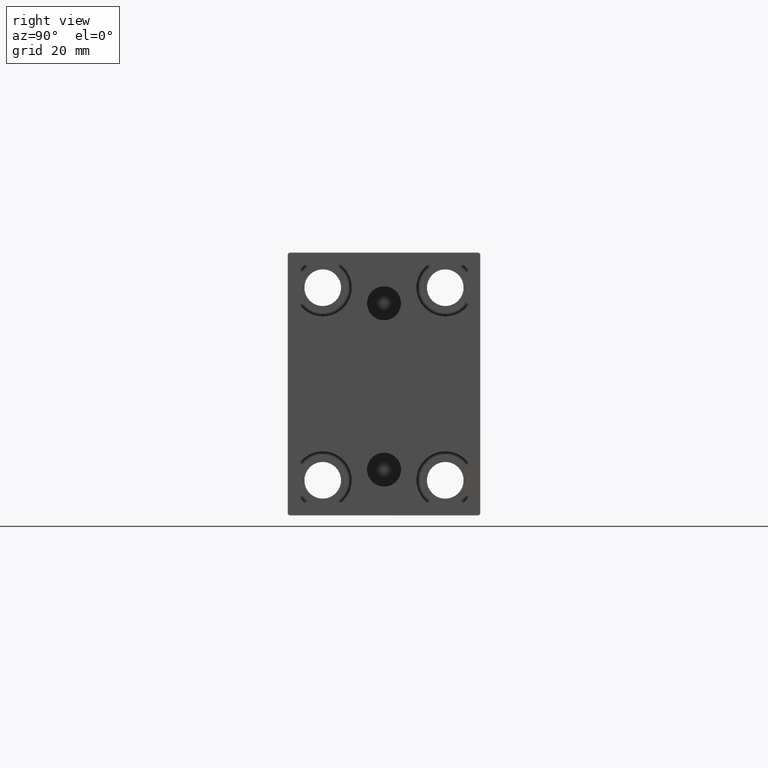
[diagram: clean part render]
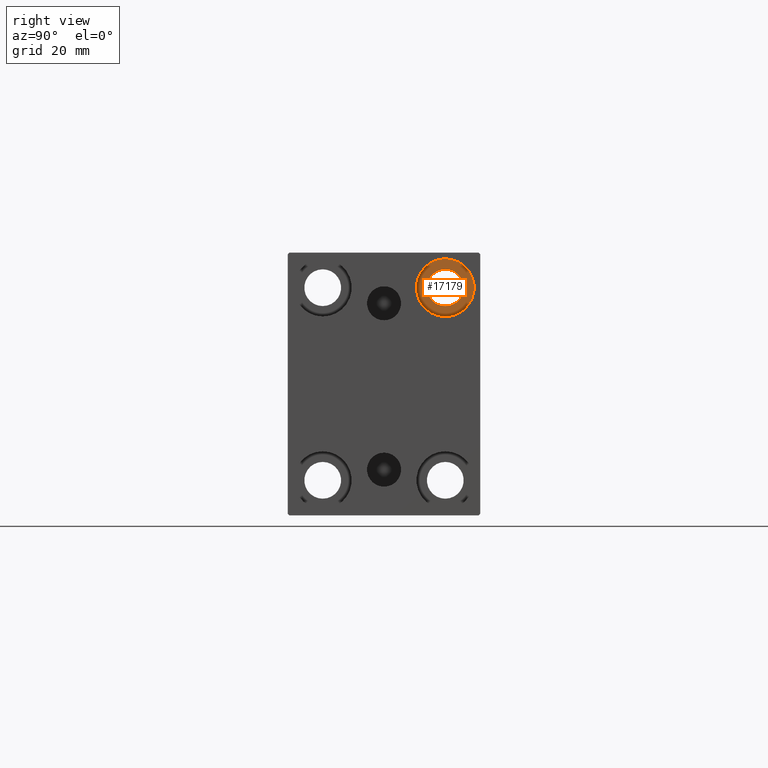
[diagram: same view with one face highlighted and labeled with its STEP entity id]
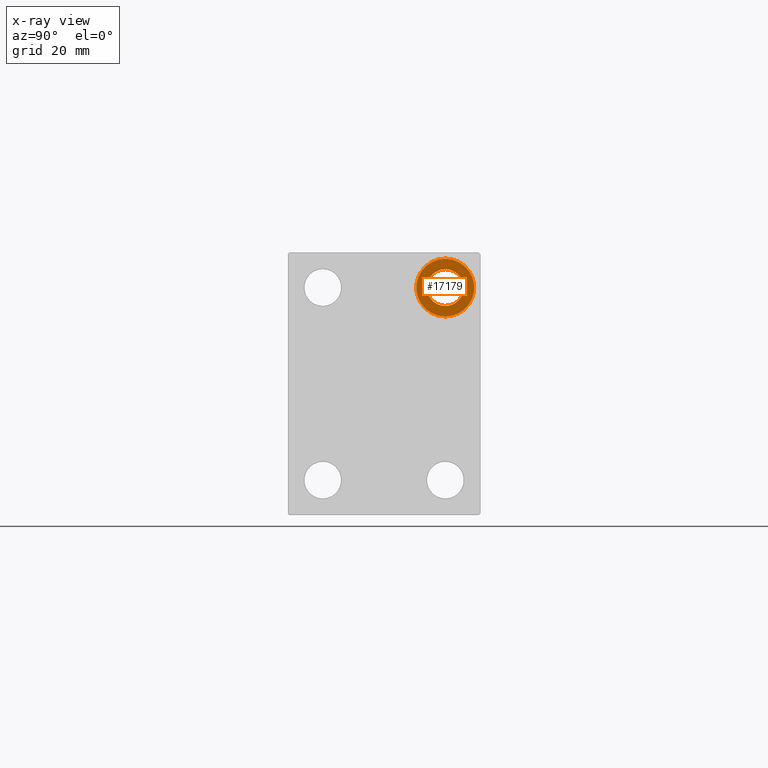
[diagram: x-ray of the same camera — body ghosted, the highlighted face saturated]
A machine part, right view. The second image highlights one B-rep face of the part: STEP entity #17179.
The next image is the same camera in x-ray: the body ghosted, the highlighted face saturated — about 0% of this face is hidden behind the body in this view.
In plain terms, the highlighted planar face has unit normal (1, 0, 0).
Its self-contained STEP definition (entity closure, byte-faithful):
#308 = EDGE_CURVE ( 'NONE', #33921, #30288, #22408, .T. ) ;
#694 = AXIS2_PLACEMENT_3D ( 'NONE', #14403, #24097, #37536 ) ;
#1954 = CARTESIAN_POINT ( 'NONE',  ( 163.9999999999999716, 17.50000000000000355, 32.74999999999999289 ) ) ;
#2197 = VERTEX_POINT ( 'NONE', #1954 ) ;
#2777 = AXIS2_PLACEMENT_3D ( 'NONE', #36370, #3086, #32855 ) ;
#3086 = DIRECTION ( 'NONE',  ( -1.000000000000000000, -0.000000000000000000, -0.000000000000000000 ) ) ;
#3167 = EDGE_CURVE ( 'NONE', #2197, #40138, #28833, .T. ) ;
#4705 = FACE_BOUND ( 'NONE', #26869, .T. ) ;
#4828 = CARTESIAN_POINT ( 'NONE',  ( 163.9999999999999716, 17.50000000000000355, 19.25000000000000000 ) ) ;
#5571 = FACE_OUTER_BOUND ( 'NONE', #35795, .T. ) ;
#8020 = DIRECTION ( 'NONE',  ( 0.000000000000000000, 0.000000000000000000, -1.000000000000000000 ) ) ;
#11539 = PLANE ( 'NONE',  #38312 ) ;
#14403 = CARTESIAN_POINT ( 'NONE',  ( 163.9999999999999716, 17.50000000000000355, 27.49999999999999645 ) ) ;
#17179 = ADVANCED_FACE ( 'NONE', ( #5571, #4705 ), #11539, .T. ) ;
#18240 = ORIENTED_EDGE ( 'NONE', *, *, #24879, .F. ) ;
#18797 = DIRECTION ( 'NONE',  ( 1.000000000000000000, 0.000000000000000000, -0.000000000000000000 ) ) ;
#19019 = DIRECTION ( 'NONE',  ( 0.000000000000000000, 0.000000000000000000, 1.000000000000000000 ) ) ;
#21006 = CARTESIAN_POINT ( 'NONE',  ( 163.9999999999999716, 17.50000000000000355, 27.49999999999999645 ) ) ;
#22408 = CIRCLE ( 'NONE', #2777, 8.249999999999992895 ) ;
#24097 = DIRECTION ( 'NONE',  ( -1.000000000000000000, -0.000000000000000000, -0.000000000000000000 ) ) ;
#24532 = DIRECTION ( 'NONE',  ( 0.000000000000000000, 0.000000000000000000, 1.000000000000000000 ) ) ;
#24760 = ORIENTED_EDGE ( 'NONE', *, *, #308, .F. ) ;
#24879 = EDGE_CURVE ( 'NONE', #30288, #33921, #27054, .T. ) ;
#25413 = CARTESIAN_POINT ( 'NONE',  ( 163.9999999999999716, 0.000000000000000000, 0.000000000000000000 ) ) ;
#26869 = EDGE_LOOP ( 'NONE', ( #31908, #34029 ) ) ;
#27054 = CIRCLE ( 'NONE', #41116, 8.249999999999992895 ) ;
#28076 = CARTESIAN_POINT ( 'NONE',  ( 163.9999999999999716, 17.50000000000000355, 35.74999999999999289 ) ) ;
#28494 = DIRECTION ( 'NONE',  ( -1.000000000000000000, -0.000000000000000000, -0.000000000000000000 ) ) ;
#28833 = CIRCLE ( 'NONE', #694, 5.249999999999997335 ) ;
#30077 = AXIS2_PLACEMENT_3D ( 'NONE', #38193, #28494, #8020 ) ;
#30288 = VERTEX_POINT ( 'NONE', #4828 ) ;
#31500 = CIRCLE ( 'NONE', #30077, 5.249999999999997335 ) ;
#31908 = ORIENTED_EDGE ( 'NONE', *, *, #3167, .T. ) ;
#32855 = DIRECTION ( 'NONE',  ( 0.000000000000000000, 0.000000000000000000, 1.000000000000000000 ) ) ;
#33921 = VERTEX_POINT ( 'NONE', #28076 ) ;
#34029 = ORIENTED_EDGE ( 'NONE', *, *, #34082, .T. ) ;
#34082 = EDGE_CURVE ( 'NONE', #40138, #2197, #31500, .T. ) ;
#35795 = EDGE_LOOP ( 'NONE', ( #18240, #24760 ) ) ;
#36370 = CARTESIAN_POINT ( 'NONE',  ( 163.9999999999999716, 17.50000000000000355, 27.49999999999999645 ) ) ;
#37536 = DIRECTION ( 'NONE',  ( 0.000000000000000000, 0.000000000000000000, -1.000000000000000000 ) ) ;
#37743 = CARTESIAN_POINT ( 'NONE',  ( 163.9999999999999716, 17.50000000000000355, 22.25000000000000000 ) ) ;
#38193 = CARTESIAN_POINT ( 'NONE',  ( 163.9999999999999716, 17.50000000000000355, 27.49999999999999645 ) ) ;
#38312 = AXIS2_PLACEMENT_3D ( 'NONE', #25413, #18797, #19019 ) ;
#40138 = VERTEX_POINT ( 'NONE', #37743 ) ;
#41116 = AXIS2_PLACEMENT_3D ( 'NONE', #21006, #41272, #24532 ) ;
#41272 = DIRECTION ( 'NONE',  ( -1.000000000000000000, -0.000000000000000000, -0.000000000000000000 ) ) ;